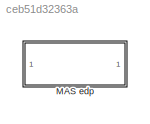
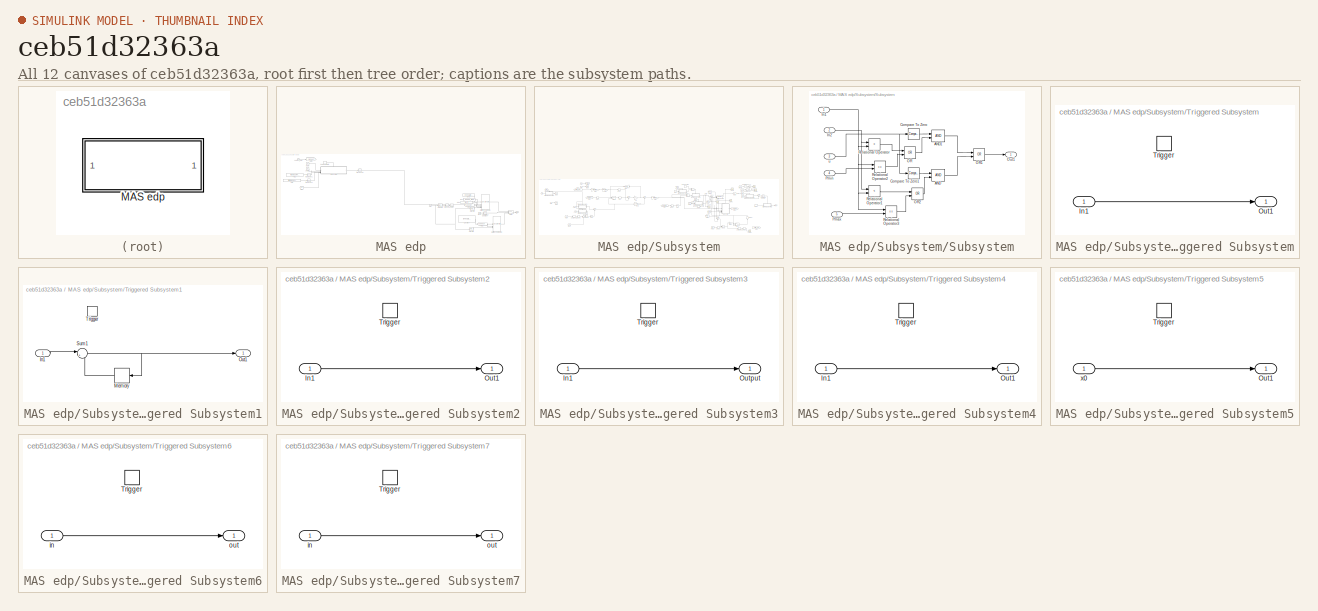
[diagram: thumbnail index - all 12 canvases of the model, root first then tree order]
MODEL slx_ceb51d32363a
KIND model
CONFIG AbsTol = auto
CONFIG EnableMultiTasking = off
CONFIG FixedStep = auto
CONFIG MaxStep = auto
CONFIG MinStep = auto
CONFIG RelTol = 1e-3
CONFIG SampleTimeConstraint = Unconstrained
CONFIG SolverName = VariableStepAuto
CONFIG StartTime = 0.0
CONFIG StopTime = 10.0
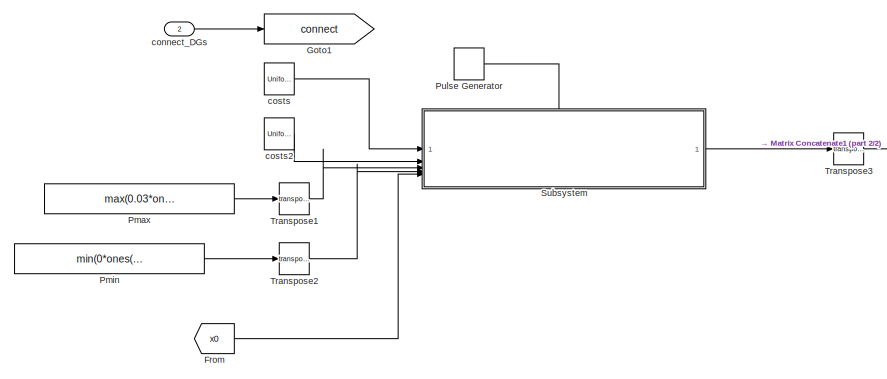
[diagram: MAS edp - part 1/2, top left region]
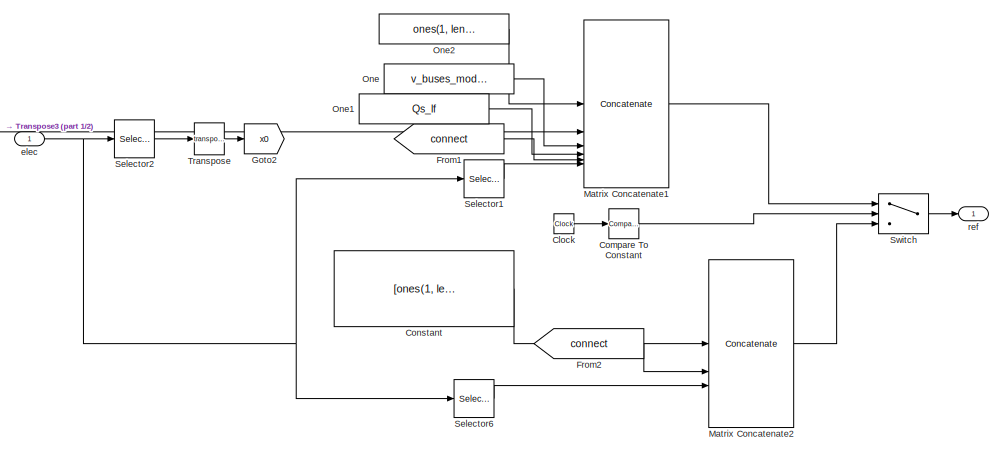
[diagram: MAS edp - part 2/2, bottom right region]
BLOCK [SubSystem] MAS edp
  NameLocation = top
  VariantControl = MAS edp
BLOCK [Clock] MAS edp/Clock
BLOCK [Reference] MAS edp/Compare To Constant  REF=simulink/Logic and Bit
Operations/Compare
To Constant
  SourceBlock = simulink/Logic and Bit\nOperations/Compare\nTo Constant
  SourceType = Compare To Constant
BLOCK [Constant] MAS edp/Constant
  Value = [ones(1, length(buses_lf)); Ps_lf; v_buses_mod(buses_lf); Qs_lf]
  VectorParams1D = off
BLOCK [From] MAS edp/From
  GotoTag = x0
BLOCK [From] MAS edp/From1
  GotoTag = connect
BLOCK [From] MAS edp/From2
  GotoTag = connect
BLOCK [Goto] MAS edp/Goto1
  GotoTag = connect
BLOCK [Goto] MAS edp/Goto2
  GotoTag = x0
BLOCK [Concatenate] MAS edp/Matrix Concatenate1
  Mode = Multidimensional array
  NumInputs = 6
BLOCK [Concatenate] MAS edp/Matrix Concatenate2
  Mode = Multidimensional array
  NumInputs = 3
BLOCK [Constant] MAS edp/One
  OutDataTypeStr = Inherit: Inherit via back propagation
  Value = v_buses_mod(buses_lf)
  VectorParams1D = off
BLOCK [Constant] MAS edp/One1
  OutDataTypeStr = Inherit: Inherit via back propagation
  Value = Qs_lf
  VectorParams1D = off
BLOCK [Constant] MAS edp/One2
  OutDataTypeStr = Inherit: Inherit via back propagation
  Value = ones(1, length(buses_lf))
  VectorParams1D = off
BLOCK [Constant] MAS edp/Pmax
  Value = max(0.03*ones(1, length(Ps_lf)), Ps_lf)
  VectorParams1D = off
BLOCK [Constant] MAS edp/Pmin
  Value = min(0*ones(1, length(Ps_lf)), Ps_lf*0.5)
  VectorParams1D = off
BLOCK [DiscretePulseGenerator] MAS edp/Pulse Generator
  Period = 100
  PhaseDelay = 2
  PulseType = Time based
  PulseWidth = 5
BLOCK [Selector] MAS edp/Selector1
  IndexOptions = Index vector (dialog),Select all
  Indices = 6,1
  InputPortWidth = 3
  NumberOfDimensions = 2
  OutputSizes = 1,1
BLOCK [Selector] MAS edp/Selector2
  IndexOptions = Index vector (dialog),Select all
  Indices = 2,1
  InputPortWidth = 3
  NumberOfDimensions = 2
  OutputSizes = 1,1
BLOCK [Selector] MAS edp/Selector6
  IndexOptions = Index vector (dialog),Select all
  Indices = 6,1
  InputPortWidth = 3
  NumberOfDimensions = 2
  OutputSizes = 1,1
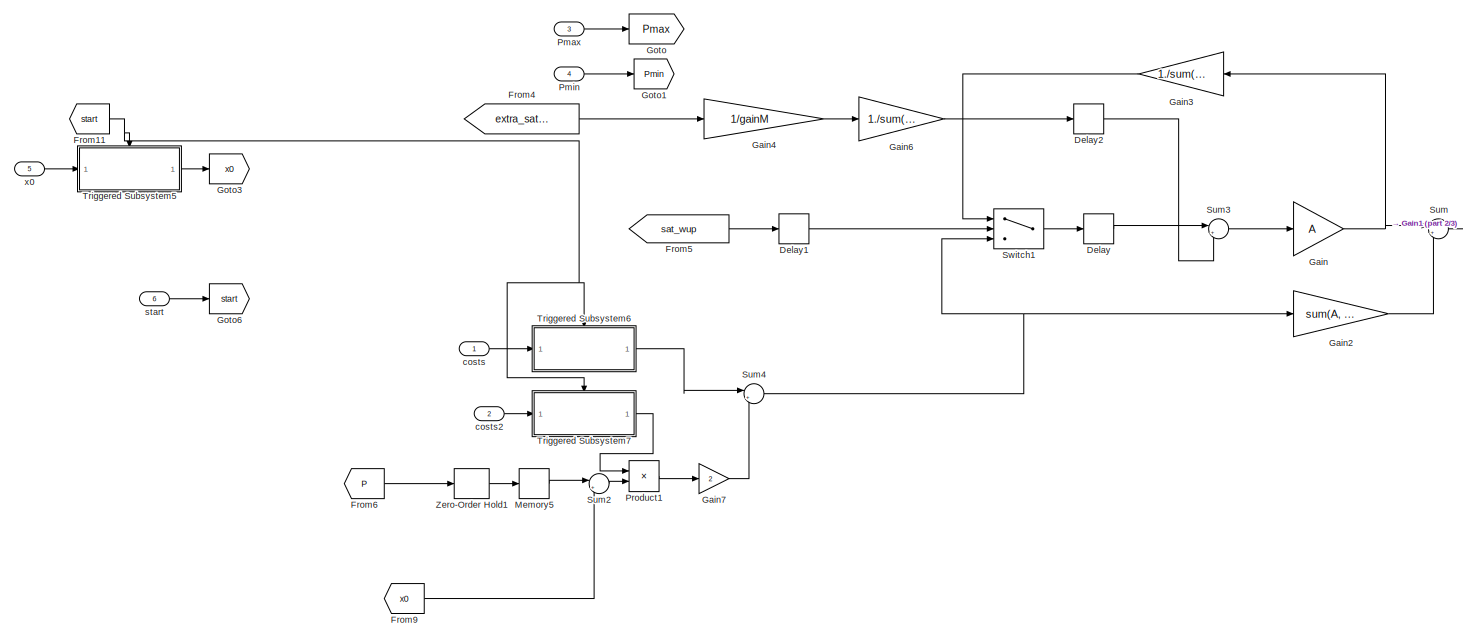
[diagram: MAS edp/Subsystem - part 1/3, left side, full height]
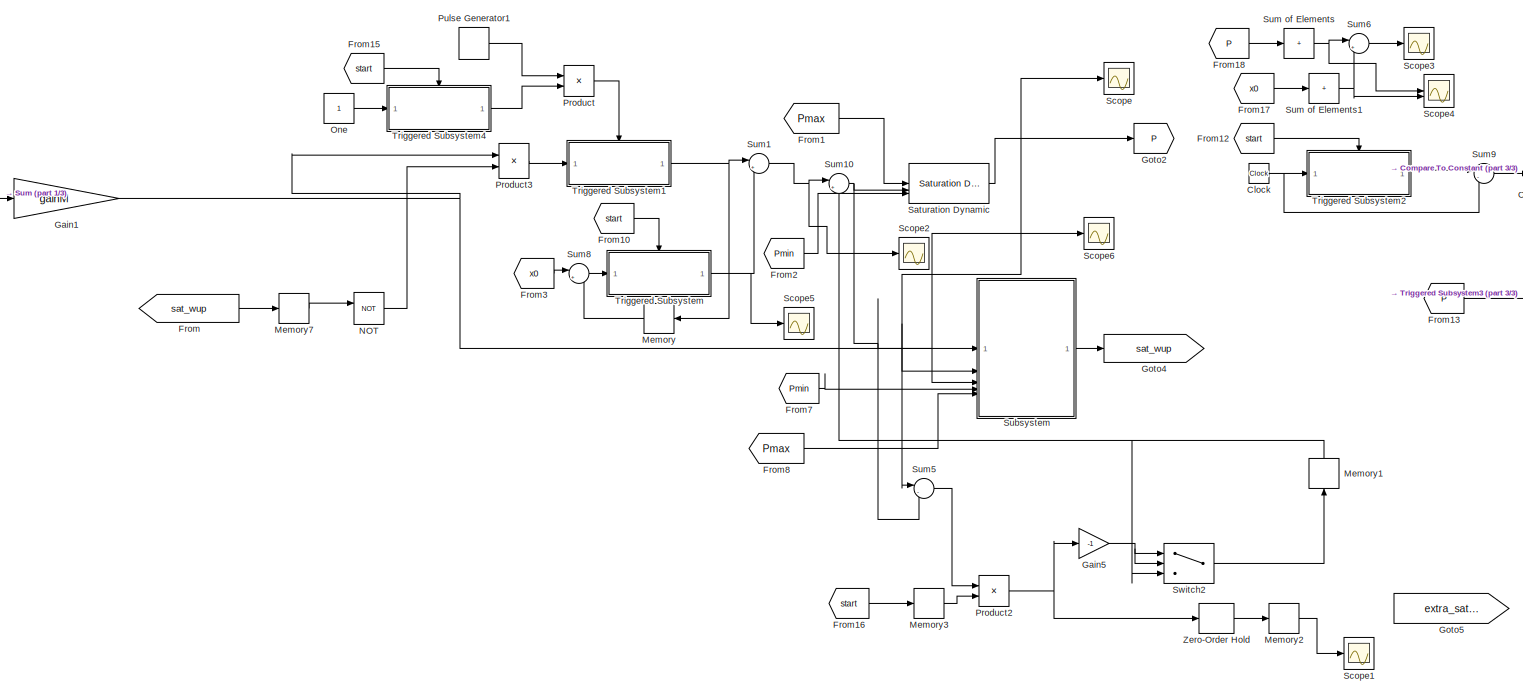
[diagram: MAS edp/Subsystem - part 2/3, right side, full height]
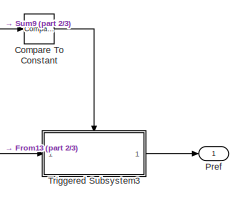
[diagram: MAS edp/Subsystem - part 3/3, middle right region]
BLOCK [SubSystem] MAS edp/Subsystem
  PortSchema = {"entries":[{"content":{"sides":[{"content":{"connectorIds":["In1","In2","In3","In4","In5"]},"type":"ConnectorPlacement.EquallySpacedRectSide","uuid":"cdca2cdc-0a32-4006-9eb7-95eef3e074c5"},{"content":{"connectorIds":["Out1"],"side":"RIGHT"},"type":"ConnectorPlacement.EquallySpacedRectSide","uuid":"477e4c44-ed13-4581-bb25-eee9ea5698cb"},{"content":{"connectorIds":["In6"],"side":"TOP"},"type":"Conn...<+269ch>
BLOCK [Clock] MAS edp/Subsystem/Clock
BLOCK [Reference] MAS edp/Subsystem/Compare To Constant  REF=simulink/Logic and Bit
Operations/Compare
To Constant
  SourceBlock = simulink/Logic and Bit\nOperations/Compare\nTo Constant
  SourceType = Compare To Constant
BLOCK [Memory] MAS edp/Subsystem/Delay
BLOCK [Memory] MAS edp/Subsystem/Delay1
BLOCK [Memory] MAS edp/Subsystem/Delay2
BLOCK [From] MAS edp/Subsystem/From
  GotoTag = sat_wup
BLOCK [From] MAS edp/Subsystem/From1
  GotoTag = Pmax
BLOCK [From] MAS edp/Subsystem/From10
  GotoTag = start
BLOCK [From] MAS edp/Subsystem/From11
  GotoTag = start
BLOCK [From] MAS edp/Subsystem/From12
  GotoTag = start
BLOCK [From] MAS edp/Subsystem/From13
  GotoTag = P
BLOCK [From] MAS edp/Subsystem/From15
  GotoTag = start
BLOCK [From] MAS edp/Subsystem/From16
  GotoTag = start
BLOCK [From] MAS edp/Subsystem/From17
  GotoTag = x0
BLOCK [From] MAS edp/Subsystem/From18
  GotoTag = P
BLOCK [From] MAS edp/Subsystem/From2
  GotoTag = Pmin
BLOCK [From] MAS edp/Subsystem/From3
  GotoTag = x0
BLOCK [From] MAS edp/Subsystem/From4
  GotoTag = extra_satur
BLOCK [From] MAS edp/Subsystem/From5
  GotoTag = sat_wup
BLOCK [From] MAS edp/Subsystem/From6
  GotoTag = P
BLOCK [From] MAS edp/Subsystem/From7
  GotoTag = Pmin
BLOCK [From] MAS edp/Subsystem/From8
  GotoTag = Pmax
BLOCK [From] MAS edp/Subsystem/From9
  GotoTag = x0
BLOCK [Gain] MAS edp/Subsystem/Gain
  Gain = A
  Multiplication = Matrix(K*u)
BLOCK [Gain] MAS edp/Subsystem/Gain1
  Gain = gainM
BLOCK [Gain] MAS edp/Subsystem/Gain2
  Gain = sum(A, 2)
BLOCK [Gain] MAS edp/Subsystem/Gain3
  Gain = 1./sum(A, 2)
BLOCK [Gain] MAS edp/Subsystem/Gain4
  Gain = 1/gainM
BLOCK [Gain] MAS edp/Subsystem/Gain5
  Gain = -1
BLOCK [Gain] MAS edp/Subsystem/Gain6
  Gain = 1./sum(A, 2)
BLOCK [Gain] MAS edp/Subsystem/Gain7
  Gain = 2
BLOCK [Goto] MAS edp/Subsystem/Goto
  GotoTag = Pmax
BLOCK [Goto] MAS edp/Subsystem/Goto1
  GotoTag = Pmin
BLOCK [Goto] MAS edp/Subsystem/Goto2
  GotoTag = P
BLOCK [Goto] MAS edp/Subsystem/Goto3
  GotoTag = x0
BLOCK [Goto] MAS edp/Subsystem/Goto4
  GotoTag = sat_wup
BLOCK [Goto] MAS edp/Subsystem/Goto5
  GotoTag = extra_satur
BLOCK [Goto] MAS edp/Subsystem/Goto6
  GotoTag = start
BLOCK [Memory] MAS edp/Subsystem/Memory
BLOCK [Memory] MAS edp/Subsystem/Memory1
  NameLocation = right
BLOCK [Memory] MAS edp/Subsystem/Memory2
BLOCK [Memory] MAS edp/Subsystem/Memory3
BLOCK [Memory] MAS edp/Subsystem/Memory5
BLOCK [Memory] MAS edp/Subsystem/Memory7
BLOCK [Logic] MAS edp/Subsystem/NOT
  AllPortsSameDT = off
  IconShape = distinctive
  Operator = NOT
  OutDataTypeStr = boolean
BLOCK [Constant] MAS edp/Subsystem/One
  OutDataTypeStr = Inherit: Inherit via back propagation
BLOCK [Inport] MAS edp/Subsystem/Pmax
  Port = 3
BLOCK [Inport] MAS edp/Subsystem/Pmin
  Port = 4
BLOCK [Outport] MAS edp/Subsystem/Pref
BLOCK [Product] MAS edp/Subsystem/Product
BLOCK [Product] MAS edp/Subsystem/Product1
BLOCK [Product] MAS edp/Subsystem/Product2
BLOCK [Product] MAS edp/Subsystem/Product3
BLOCK [DiscretePulseGenerator] MAS edp/Subsystem/Pulse Generator1
  Period = 0.1
  PulseType = Time based
  PulseWidth = 50
BLOCK [Reference] MAS edp/Subsystem/Saturation Dynamic  REF=simulink/Discontinuities/Saturation
Dynamic
  SourceBlock = simulink/Discontinuities/Saturation\nDynamic
  SourceType = Saturation Dynamic
BLOCK [Scope] MAS edp/Subsystem/Scope
  ActiveDisplayYMaximum = 0.03375
  ActiveDisplayYMinimum = -0.00375
  DataLoggingVariableName = ScopeData1
  Floating = off
  GraphicalSettings = {"GraphicalSettings":{"LegacySettings":true,"Style":{"AxesScalingProperties":{"AlignXAxis":"Center","AlignYAxis":"Center","AutoScaleXAxisLimits":true,"AxesScaling":"Manual","AxesScalingNumUpdates":10,"ScaleAxesLimitsAtStop":true,"XAxisDataRange":100,"YAxisDataRange":80},"Style":{"AxesColor":"[0 0 0]","ChannelNames":[""],"ColorOrder":"[1 0.909803921568627 0.392156862745098;0.149019607843137 0.54901...<+675ch>  <repeated x7 — deduplicated; at blocks: Scope, Scope1, Scope2, Scope3, Scope4, Scope5, Scope6>
  LayoutDimensionsString = [1 1]
  MultipleDisplayCache = [{"MaxYLimMag":0.03375,"MaxYLimReal":0.03375,"MinYLimMag":0,"MinYLimReal":-0.00375,"PlotAsMagnitudePhase":false,"ShowGrid":true,"ShowLegend":true,"Title":"%<SignalLabel>","YLabel":""}]
  NumInputPorts = 1
  ShowLegend = on
  WasSavedAsWebScope = on
  WindowPosition = [164 199 560 420]
BLOCK [Scope] MAS edp/Subsystem/Scope1
  ActiveDisplayYMaximum = 0.00113
  ActiveDisplayYMinimum = -0.00119
  DataLoggingVariableName = ScopeData1
  Floating = off
  LayoutDimensionsString = [1 1]
  MultipleDisplayCache = [{"MaxYLimMag":0.00119,"MaxYLimReal":0.00113,"MinYLimMag":0,"MinYLimReal":-0.00119,"PlotAsMagnitudePhase":false,"ShowGrid":true,"ShowLegend":false,"Title":"%<SignalLabel>","YLabel":""}]
  NumInputPorts = 1
  WasSavedAsWebScope = on
  WindowPosition = [342 343 560 420]
BLOCK [Scope] MAS edp/Subsystem/Scope2
  ActiveDisplayYMaximum = 0.03442
  ActiveDisplayYMinimum = -0.00492
  DataLoggingVariableName = ScopeData2
  Floating = off
  LayoutDimensionsString = [1 1]
  MultipleDisplayCache = [{"MaxYLimMag":0.03442,"MaxYLimReal":0.03442,"MinYLimMag":0,"MinYLimReal":-0.00492,"PlotAsMagnitudePhase":false,"ShowGrid":true,"ShowLegend":false,"Title":"%<SignalLabel>","YLabel":""}]
  NumInputPorts = 1
  WasSavedAsWebScope = on
  WindowPosition = [1081 281 560 420]
BLOCK [Scope] MAS edp/Subsystem/Scope3
  ActiveDisplayYMaximum = 0.16617
  ActiveDisplayYMinimum = -0.01846
  DataLoggingVariableName = ScopeData3
  Floating = off
  LayoutDimensionsString = [1 1]
  MultipleDisplayCache = [{"MaxYLimMag":0.16617,"MaxYLimReal":0.16617,"MinYLimMag":0,"MinYLimReal":-0.01846,"PlotAsMagnitudePhase":false,"ShowGrid":true,"ShowLegend":false,"Title":"%<SignalLabel>","YLabel":""}]
  NumInputPorts = 1
  WasSavedAsWebScope = on
  WindowPosition = [1199 402 560 420]
BLOCK [Scope] MAS edp/Subsystem/Scope4
  ActiveDisplayYMaximum = 1
  ActiveDisplayYMinimum = -1
  DataLoggingVariableName = ScopeData4
  Floating = off
  LayoutDimensionsString = [1 1]
  MultipleDisplayCache = [{"MaxYLimMag":1,"MaxYLimReal":1,"MinYLimMag":0,"MinYLimReal":-1,"PlotAsMagnitudePhase":false,"ShowGrid":true,"ShowLegend":false,"Title":"%<SignalLabel>","YLabel":""}]
  NumInputPorts = 2
  WasSavedAsWebScope = on
BLOCK [Scope] MAS edp/Subsystem/Scope5
  ActiveDisplayYMaximum = 0.06371
  ActiveDisplayYMinimum = -0.01822
  DataLoggingVariableName = ScopeData1
  Floating = off
  LayoutDimensionsString = [1 1]
  MultipleDisplayCache = [{"MaxYLimMag":0.06371,"MaxYLimReal":0.06371,"MinYLimMag":0,"MinYLimReal":-0.01822,"PlotAsMagnitudePhase":false,"ShowGrid":true,"ShowLegend":false,"Title":"%<SignalLabel>","YLabel":""}]
  NumInputPorts = 1
  WasSavedAsWebScope = on
  WindowPosition = [207 271 560 420]
BLOCK [Scope] MAS edp/Subsystem/Scope6
  ActiveDisplayYMaximum = 0.00091
  ActiveDisplayYMinimum = -0.00114
  DataLoggingVariableName = ScopeData2
  Floating = off
  LayoutDimensionsString = [1 1]
  MultipleDisplayCache = [{"MaxYLimMag":0.00114,"MaxYLimReal":0.00091,"MinYLimMag":0,"MinYLimReal":-0.00114,"PlotAsMagnitudePhase":false,"ShowGrid":true,"ShowLegend":true,"Title":"%<SignalLabel>","YLabel":""}]
  NumInputPorts = 1
  ShowLegend = on
  WasSavedAsWebScope = on
  WindowPosition = [1233 308 560 420]
BLOCK [SubSystem] MAS edp/Subsystem/Subsystem
BLOCK [Logic] MAS edp/Subsystem/Subsystem/AND
  AllPortsSameDT = off
  IconShape = distinctive
  OutDataTypeStr = boolean
BLOCK [Logic] MAS edp/Subsystem/Subsystem/AND1
  AllPortsSameDT = off
  IconShape = distinctive
  OutDataTypeStr = boolean
BLOCK [Reference] MAS edp/Subsystem/Subsystem/Compare To Zero  REF=simulink/Logic and Bit
Operations/Compare
To Zero
  SourceBlock = simulink/Logic and Bit\nOperations/Compare\nTo Zero
  SourceType = Compare To Zero
BLOCK [Reference] MAS edp/Subsystem/Subsystem/Compare To Zero1  REF=simulink/Logic and Bit
Operations/Compare
To Zero
  SourceBlock = simulink/Logic and Bit\nOperations/Compare\nTo Zero
  SourceType = Compare To Zero
BLOCK [Inport] MAS edp/Subsystem/Subsystem/In1
BLOCK [Inport] MAS edp/Subsystem/Subsystem/In2
  Port = 2
BLOCK [Logic] MAS edp/Subsystem/Subsystem/OR
  AllPortsSameDT = off
  IconShape = distinctive
  Operator = OR
  OutDataTypeStr = boolean
BLOCK [Logic] MAS edp/Subsystem/Subsystem/OR1
  AllPortsSameDT = off
  IconShape = distinctive
  Operator = OR
  OutDataTypeStr = boolean
BLOCK [Logic] MAS edp/Subsystem/Subsystem/OR2
  AllPortsSameDT = off
  IconShape = distinctive
  Operator = OR
  OutDataTypeStr = boolean
BLOCK [Outport] MAS edp/Subsystem/Subsystem/Out1
BLOCK [Inport] MAS edp/Subsystem/Subsystem/Pmax
  Port = 5
BLOCK [Inport] MAS edp/Subsystem/Subsystem/Pmin
  Port = 4
BLOCK [RelationalOperator] MAS edp/Subsystem/Subsystem/Relational Operator
  InputSameDT = off
  Operator = >
  OutDataTypeStr = boolean
  RndMeth = Simplest
BLOCK [RelationalOperator] MAS edp/Subsystem/Subsystem/Relational Operator1
  InputSameDT = off
  Operator = <
  OutDataTypeStr = boolean
  RndMeth = Simplest
BLOCK [RelationalOperator] MAS edp/Subsystem/Subsystem/Relational Operator2
  InputSameDT = off
  Operator = ==
  OutDataTypeStr = boolean
  RndMeth = Simplest
BLOCK [RelationalOperator] MAS edp/Subsystem/Subsystem/Relational Operator3
  InputSameDT = off
  Operator = ==
  OutDataTypeStr = boolean
  RndMeth = Simplest
BLOCK [Inport] MAS edp/Subsystem/Subsystem/u
  Port = 3
BLOCK [Sum] MAS edp/Subsystem/Sum
  Inputs = |+-
BLOCK [Sum] MAS edp/Subsystem/Sum of Elements
  IconShape = rectangular
  Inputs = +
BLOCK [Sum] MAS edp/Subsystem/Sum of Elements1
  IconShape = rectangular
  Inputs = +
BLOCK [Sum] MAS edp/Subsystem/Sum1
  Inputs = |++
BLOCK [Sum] MAS edp/Subsystem/Sum10
  Inputs = |++
BLOCK [Sum] MAS edp/Subsystem/Sum2
  Inputs = |++
BLOCK [Sum] MAS edp/Subsystem/Sum3
  Inputs = |++
BLOCK [Sum] MAS edp/Subsystem/Sum4
  Inputs = |++
BLOCK [Sum] MAS edp/Subsystem/Sum5
  Inputs = |-+
BLOCK [Sum] MAS edp/Subsystem/Sum6
  Inputs = |++
BLOCK [Sum] MAS edp/Subsystem/Sum8
  Inputs = |+-
BLOCK [Sum] MAS edp/Subsystem/Sum9
  Inputs = |-+
BLOCK [Switch] MAS edp/Subsystem/Switch1
  Criteria = u2 > Threshold
  InputSameDT = off
  SaturateOnIntegerOverflow = off
BLOCK [Switch] MAS edp/Subsystem/Switch2
  Criteria = u2 ~= 0
  InputSameDT = off
  SaturateOnIntegerOverflow = off
BLOCK [SubSystem] MAS edp/Subsystem/Triggered Subsystem
  TreatAsAtomicUnit = on
BLOCK [Inport] MAS edp/Subsystem/Triggered Subsystem/In1
BLOCK [Outport] MAS edp/Subsystem/Triggered Subsystem/Out1
BLOCK [TriggerPort] MAS edp/Subsystem/Triggered Subsystem/Trigger
  StatesWhenEnabling = held
  VariantControl = (inherit)
BLOCK [SubSystem] MAS edp/Subsystem/Triggered Subsystem1
  TreatAsAtomicUnit = on
BLOCK [Inport] MAS edp/Subsystem/Triggered Subsystem1/In1
BLOCK [Memory] MAS edp/Subsystem/Triggered Subsystem1/Memory
  InheritSampleTime = on
  NameLocation = top
BLOCK [Outport] MAS edp/Subsystem/Triggered Subsystem1/Out1
BLOCK [Sum] MAS edp/Subsystem/Triggered Subsystem1/Sum1
  Inputs = |++
BLOCK [TriggerPort] MAS edp/Subsystem/Triggered Subsystem1/Trigger
  StatesWhenEnabling = held
  VariantControl = (inherit)
BLOCK [SubSystem] MAS edp/Subsystem/Triggered Subsystem2
  TreatAsAtomicUnit = on
BLOCK [Inport] MAS edp/Subsystem/Triggered Subsystem2/In1
BLOCK [Outport] MAS edp/Subsystem/Triggered Subsystem2/Out1
BLOCK [TriggerPort] MAS edp/Subsystem/Triggered Subsystem2/Trigger
  StatesWhenEnabling = held
  VariantControl = (inherit)
BLOCK [SubSystem] MAS edp/Subsystem/Triggered Subsystem3
  TreatAsAtomicUnit = on
BLOCK [Inport] MAS edp/Subsystem/Triggered Subsystem3/In1
BLOCK [Outport] MAS edp/Subsystem/Triggered Subsystem3/Output
BLOCK [TriggerPort] MAS edp/Subsystem/Triggered Subsystem3/Trigger
  StatesWhenEnabling = held
  VariantControl = (inherit)
BLOCK [SubSystem] MAS edp/Subsystem/Triggered Subsystem4
  TreatAsAtomicUnit = on
BLOCK [Inport] MAS edp/Subsystem/Triggered Subsystem4/In1
BLOCK [Outport] MAS edp/Subsystem/Triggered Subsystem4/Out1
BLOCK [TriggerPort] MAS edp/Subsystem/Triggered Subsystem4/Trigger
  StatesWhenEnabling = held
  VariantControl = (inherit)
BLOCK [SubSystem] MAS edp/Subsystem/Triggered Subsystem5
  TreatAsAtomicUnit = on
BLOCK [Outport] MAS edp/Subsystem/Triggered Subsystem5/Out1
BLOCK [TriggerPort] MAS edp/Subsystem/Triggered Subsystem5/Trigger
  StatesWhenEnabling = held
  VariantControl = (inherit)
BLOCK [Inport] MAS edp/Subsystem/Triggered Subsystem5/x0
BLOCK [SubSystem] MAS edp/Subsystem/Triggered Subsystem6
  TreatAsAtomicUnit = on
BLOCK [TriggerPort] MAS edp/Subsystem/Triggered Subsystem6/Trigger
  StatesWhenEnabling = held
  VariantControl = (inherit)
BLOCK [Inport] MAS edp/Subsystem/Triggered Subsystem6/in
BLOCK [Outport] MAS edp/Subsystem/Triggered Subsystem6/out
BLOCK [SubSystem] MAS edp/Subsystem/Triggered Subsystem7
  TreatAsAtomicUnit = on
BLOCK [TriggerPort] MAS edp/Subsystem/Triggered Subsystem7/Trigger
  StatesWhenEnabling = held
  VariantControl = (inherit)
BLOCK [Inport] MAS edp/Subsystem/Triggered Subsystem7/in
BLOCK [Outport] MAS edp/Subsystem/Triggered Subsystem7/out
BLOCK [ZeroOrderHold] MAS edp/Subsystem/Zero-Order Hold
  SampleTime = 0.1
BLOCK [ZeroOrderHold] MAS edp/Subsystem/Zero-Order Hold1
  SampleTime = 0.1
BLOCK [Inport] MAS edp/Subsystem/costs
BLOCK [Inport] MAS edp/Subsystem/costs2
  Port = 2
BLOCK [Inport] MAS edp/Subsystem/start
  Port = 6
BLOCK [Inport] MAS edp/Subsystem/x0
  Port = 5
BLOCK [Switch] MAS edp/Switch
  Criteria = u2 > Threshold
  InputSameDT = off
  SaturateOnIntegerOverflow = off
BLOCK [Math] MAS edp/Transpose
  Operator = transpose
BLOCK [Math] MAS edp/Transpose1
  Operator = transpose
BLOCK [Math] MAS edp/Transpose2
  Operator = transpose
BLOCK [Math] MAS edp/Transpose3
  Operator = transpose
BLOCK [Inport] MAS edp/connect_DGs
  Port = 2
BLOCK [UniformRandomNumber] MAS edp/costs
  Minimum = 0
  SampleTime = 100
  Seed = (1:length(buses_lf))'
  VectorParams1D = off
BLOCK [UniformRandomNumber] MAS edp/costs2
  Minimum = 0
  SampleTime = 100
  Seed = 9*(1:length(buses_lf))'
  VectorParams1D = off
BLOCK [Inport] MAS edp/elec
BLOCK [Outport] MAS edp/ref
LINE MAS edp/Clock:1 -> MAS edp/Compare To Constant:1
LINE MAS edp/Compare To Constant:1 -> MAS edp/Switch:2
LINE MAS edp/Constant:1 -> MAS edp/Matrix Concatenate2:1
LINE MAS edp/From1:1 -> MAS edp/Matrix Concatenate1:5
LINE MAS edp/From2:1 -> MAS edp/Matrix Concatenate2:2
LINE MAS edp/From:1 -> MAS edp/Subsystem:5
LINE MAS edp/Matrix Concatenate1:1 -> MAS edp/Switch:1
LINE MAS edp/Matrix Concatenate2:1 -> MAS edp/Switch:3
LINE MAS edp/One1:1 -> MAS edp/Matrix Concatenate1:4
LINE MAS edp/One2:1 -> MAS edp/Matrix Concatenate1:1
LINE MAS edp/One:1 -> MAS edp/Matrix Concatenate1:3
LINE MAS edp/Pmax:1 -> MAS edp/Transpose1:1
LINE MAS edp/Pmin:1 -> MAS edp/Transpose2:1
LINE MAS edp/Pulse Generator:1 -> MAS edp/Subsystem:6
LINE MAS edp/Selector1:1 -> MAS edp/Matrix Concatenate1:6
LINE MAS edp/Selector2:1 -> MAS edp/Transpose:1
LINE MAS edp/Selector6:1 -> MAS edp/Matrix Concatenate2:3
NET MAS edp/Subsystem/Clock:1 -> MAS edp/Subsystem/Sum9:2, MAS edp/Subsystem/Triggered Subsystem2:1
LINE MAS edp/Subsystem/Compare To Constant:1 -> MAS edp/Subsystem/Triggered Subsystem3:trigger
LINE MAS edp/Subsystem/Delay1:1 -> MAS edp/Subsystem/Switch1:2
LINE MAS edp/Subsystem/Delay2:1 -> MAS edp/Subsystem/Sum3:2
LINE MAS edp/Subsystem/Delay:1 -> MAS edp/Subsystem/Sum3:1
LINE MAS edp/Subsystem/From10:1 -> MAS edp/Subsystem/Triggered Subsystem:trigger
NET MAS edp/Subsystem/From11:1 -> MAS edp/Subsystem/Triggered Subsystem5:trigger, MAS edp/Subsystem/Triggered Subsystem6:trigger, MAS edp/Subsystem/Triggered Subsystem7:trigger
LINE MAS edp/Subsystem/From12:1 -> MAS edp/Subsystem/Triggered Subsystem2:trigger
LINE MAS edp/Subsystem/From13:1 -> MAS edp/Subsystem/Triggered Subsystem3:1
LINE MAS edp/Subsystem/From15:1 -> MAS edp/Subsystem/Triggered Subsystem4:trigger
LINE MAS edp/Subsystem/From16:1 -> MAS edp/Subsystem/Memory3:1
LINE MAS edp/Subsystem/From17:1 -> MAS edp/Subsystem/Sum of Elements1:1
LINE MAS edp/Subsystem/From18:1 -> MAS edp/Subsystem/Sum of Elements:1
LINE MAS edp/Subsystem/From1:1 -> MAS edp/Subsystem/Saturation Dynamic:1
LINE MAS edp/Subsystem/From2:1 -> MAS edp/Subsystem/Saturation Dynamic:3
LINE MAS edp/Subsystem/From3:1 -> MAS edp/Subsystem/Sum8:1
LINE MAS edp/Subsystem/From4:1 -> MAS edp/Subsystem/Gain4:1
LINE MAS edp/Subsystem/From5:1 -> MAS edp/Subsystem/Delay1:1
LINE MAS edp/Subsystem/From6:1 -> MAS edp/Subsystem/Zero-Order Hold1:1
LINE MAS edp/Subsystem/From7:1 -> MAS edp/Subsystem/Subsystem:4
LINE MAS edp/Subsystem/From8:1 -> MAS edp/Subsystem/Subsystem:5
LINE MAS edp/Subsystem/From9:1 -> MAS edp/Subsystem/Sum2:2
LINE MAS edp/Subsystem/From:1 -> MAS edp/Subsystem/Memory7:1
NET MAS edp/Subsystem/Gain1:1 -> MAS edp/Subsystem/Product3:1, MAS edp/Subsystem/Scope6:1, MAS edp/Subsystem/Subsystem:3
LINE MAS edp/Subsystem/Gain2:1 -> MAS edp/Subsystem/Sum:2
LINE MAS edp/Subsystem/Gain3:1 -> MAS edp/Subsystem/Switch1:1
LINE MAS edp/Subsystem/Gain4:1 -> MAS edp/Subsystem/Gain6:1
NET MAS edp/Subsystem/Gain5:1 -> MAS edp/Subsystem/Switch2:1, MAS edp/Subsystem/Switch2:2
LINE MAS edp/Subsystem/Gain6:1 -> MAS edp/Subsystem/Delay2:1
LINE MAS edp/Subsystem/Gain7:1 -> MAS edp/Subsystem/Sum4:2
NET MAS edp/Subsystem/Gain:1 -> MAS edp/Subsystem/Gain3:1, MAS edp/Subsystem/Sum:1
NET MAS edp/Subsystem/Memory1:1 -> MAS edp/Subsystem/Sum10:2, MAS edp/Subsystem/Switch2:3
LINE MAS edp/Subsystem/Memory2:1 -> MAS edp/Subsystem/Scope1:1
LINE MAS edp/Subsystem/Memory3:1 -> MAS edp/Subsystem/Product2:2
LINE MAS edp/Subsystem/Memory5:1 -> MAS edp/Subsystem/Sum2:1
LINE MAS edp/Subsystem/Memory7:1 -> MAS edp/Subsystem/NOT:1
LINE MAS edp/Subsystem/Memory:1 -> MAS edp/Subsystem/Sum8:2
LINE MAS edp/Subsystem/NOT:1 -> MAS edp/Subsystem/Product3:2
LINE MAS edp/Subsystem/One:1 -> MAS edp/Subsystem/Triggered Subsystem4:1
LINE MAS edp/Subsystem/Pmax:1 -> MAS edp/Subsystem/Goto:1
LINE MAS edp/Subsystem/Pmin:1 -> MAS edp/Subsystem/Goto1:1
LINE MAS edp/Subsystem/Product1:1 -> MAS edp/Subsystem/Gain7:1
NET MAS edp/Subsystem/Product2:1 -> MAS edp/Subsystem/Gain5:1, MAS edp/Subsystem/Zero-Order Hold:1
LINE MAS edp/Subsystem/Product3:1 -> MAS edp/Subsystem/Triggered Subsystem1:1
LINE MAS edp/Subsystem/Product:1 -> MAS edp/Subsystem/Triggered Subsystem1:trigger
LINE MAS edp/Subsystem/Pulse Generator1:1 -> MAS edp/Subsystem/Product:1
NET MAS edp/Subsystem/Saturation Dynamic:1 -> MAS edp/Subsystem/Goto2:1, MAS edp/Subsystem/Scope:1, MAS edp/Subsystem/Subsystem:2, MAS edp/Subsystem/Sum5:1
LINE MAS edp/Subsystem/Subsystem/AND1:1 -> MAS edp/Subsystem/Subsystem/OR1:1
LINE MAS edp/Subsystem/Subsystem/AND:1 -> MAS edp/Subsystem/Subsystem/OR1:2
LINE MAS edp/Subsystem/Subsystem/Compare To Zero1:1 -> MAS edp/Subsystem/Subsystem/AND:1
LINE MAS edp/Subsystem/Subsystem/Compare To Zero:1 -> MAS edp/Subsystem/Subsystem/AND1:1
NET MAS edp/Subsystem/Subsystem/In1:1 -> MAS edp/Subsystem/Subsystem/Relational Operator1:2, MAS edp/Subsystem/Subsystem/Relational Operator2:1, MAS edp/Subsystem/Subsystem/Relational Operator3:1, MAS edp/Subsystem/Subsystem/Relational Operator:2
NET MAS edp/Subsystem/Subsystem/In2:1 -> MAS edp/Subsystem/Subsystem/Relational Operator1:1, MAS edp/Subsystem/Subsystem/Relational Operator:1
LINE MAS edp/Subsystem/Subsystem/OR1:1 -> MAS edp/Subsystem/Subsystem/Out1:1
LINE MAS edp/Subsystem/Subsystem/OR2:1 -> MAS edp/Subsystem/Subsystem/AND:2
LINE MAS edp/Subsystem/Subsystem/OR:1 -> MAS edp/Subsystem/Subsystem/AND1:2
LINE MAS edp/Subsystem/Subsystem/Pmax:1 -> MAS edp/Subsystem/Subsystem/Relational Operator3:2
LINE MAS edp/Subsystem/Subsystem/Pmin:1 -> MAS edp/Subsystem/Subsystem/Relational Operator2:2
LINE MAS edp/Subsystem/Subsystem/Relational Operator1:1 -> MAS edp/Subsystem/Subsystem/OR2:1
LINE MAS edp/Subsystem/Subsystem/Relational Operator2:1 -> MAS edp/Subsystem/Subsystem/OR:2
LINE MAS edp/Subsystem/Subsystem/Relational Operator3:1 -> MAS edp/Subsystem/Subsystem/OR2:2
LINE MAS edp/Subsystem/Subsystem/Relational Operator:1 -> MAS edp/Subsystem/Subsystem/OR:1
NET MAS edp/Subsystem/Subsystem/u:1 -> MAS edp/Subsystem/Subsystem/Compare To Zero1:1, MAS edp/Subsystem/Subsystem/Compare To Zero:1
LINE MAS edp/Subsystem/Subsystem:1 -> MAS edp/Subsystem/Goto4:1
NET MAS edp/Subsystem/Sum of Elements1:1 -> MAS edp/Subsystem/Scope4:2, MAS edp/Subsystem/Sum6:2
NET MAS edp/Subsystem/Sum of Elements:1 -> MAS edp/Subsystem/Scope4:1, MAS edp/Subsystem/Sum6:1
NET MAS edp/Subsystem/Sum10:1 -> MAS edp/Subsystem/Saturation Dynamic:2, MAS edp/Subsystem/Subsystem:1, MAS edp/Subsystem/Sum5:2
NET MAS edp/Subsystem/Sum1:1 -> MAS edp/Subsystem/Scope2:1, MAS edp/Subsystem/Sum10:1
LINE MAS edp/Subsystem/Sum2:1 -> MAS edp/Subsystem/Product1:2
LINE MAS edp/Subsystem/Sum3:1 -> MAS edp/Subsystem/Gain:1
NET MAS edp/Subsystem/Sum4:1 -> MAS edp/Subsystem/Gain2:1, MAS edp/Subsystem/Switch1:3
LINE MAS edp/Subsystem/Sum5:1 -> MAS edp/Subsystem/Product2:1
LINE MAS edp/Subsystem/Sum6:1 -> MAS edp/Subsystem/Scope3:1
LINE MAS edp/Subsystem/Sum8:1 -> MAS edp/Subsystem/Triggered Subsystem:1
LINE MAS edp/Subsystem/Sum9:1 -> MAS edp/Subsystem/Compare To Constant:1
LINE MAS edp/Subsystem/Sum:1 -> MAS edp/Subsystem/Gain1:1
LINE MAS edp/Subsystem/Switch1:1 -> MAS edp/Subsystem/Delay:1
LINE MAS edp/Subsystem/Switch2:1 -> MAS edp/Subsystem/Memory1:1
LINE MAS edp/Subsystem/Triggered Subsystem/In1:1 -> MAS edp/Subsystem/Triggered Subsystem/Out1:1
LINE MAS edp/Subsystem/Triggered Subsystem1/In1:1 -> MAS edp/Subsystem/Triggered Subsystem1/Sum1:1
LINE MAS edp/Subsystem/Triggered Subsystem1/Memory:1 -> MAS edp/Subsystem/Triggered Subsystem1/Sum1:2
NET MAS edp/Subsystem/Triggered Subsystem1/Sum1:1 -> MAS edp/Subsystem/Triggered Subsystem1/Memory:1, MAS edp/Subsystem/Triggered Subsystem1/Out1:1
NET MAS edp/Subsystem/Triggered Subsystem1:1 -> MAS edp/Subsystem/Memory:1, MAS edp/Subsystem/Sum1:1
LINE MAS edp/Subsystem/Triggered Subsystem2/In1:1 -> MAS edp/Subsystem/Triggered Subsystem2/Out1:1
LINE MAS edp/Subsystem/Triggered Subsystem2:1 -> MAS edp/Subsystem/Sum9:1
LINE MAS edp/Subsystem/Triggered Subsystem3/In1:1 -> MAS edp/Subsystem/Triggered Subsystem3/Output:1
LINE MAS edp/Subsystem/Triggered Subsystem3:1 -> MAS edp/Subsystem/Pref:1
LINE MAS edp/Subsystem/Triggered Subsystem4/In1:1 -> MAS edp/Subsystem/Triggered Subsystem4/Out1:1
LINE MAS edp/Subsystem/Triggered Subsystem4:1 -> MAS edp/Subsystem/Product:2
LINE MAS edp/Subsystem/Triggered Subsystem5/x0:1 -> MAS edp/Subsystem/Triggered Subsystem5/Out1:1
LINE MAS edp/Subsystem/Triggered Subsystem5:1 -> MAS edp/Subsystem/Goto3:1
LINE MAS edp/Subsystem/Triggered Subsystem6/in:1 -> MAS edp/Subsystem/Triggered Subsystem6/out:1
LINE MAS edp/Subsystem/Triggered Subsystem6:1 -> MAS edp/Subsystem/Sum4:1
LINE MAS edp/Subsystem/Triggered Subsystem7/in:1 -> MAS edp/Subsystem/Triggered Subsystem7/out:1
LINE MAS edp/Subsystem/Triggered Subsystem7:1 -> MAS edp/Subsystem/Product1:1
NET MAS edp/Subsystem/Triggered Subsystem:1 -> MAS edp/Subsystem/Scope5:1, MAS edp/Subsystem/Sum1:2
LINE MAS edp/Subsystem/Zero-Order Hold1:1 -> MAS edp/Subsystem/Memory5:1
LINE MAS edp/Subsystem/Zero-Order Hold:1 -> MAS edp/Subsystem/Memory2:1
LINE MAS edp/Subsystem/costs2:1 -> MAS edp/Subsystem/Triggered Subsystem7:1
LINE MAS edp/Subsystem/costs:1 -> MAS edp/Subsystem/Triggered Subsystem6:1
LINE MAS edp/Subsystem/start:1 -> MAS edp/Subsystem/Goto6:1
LINE MAS edp/Subsystem/x0:1 -> MAS edp/Subsystem/Triggered Subsystem5:1
LINE MAS edp/Subsystem:1 -> MAS edp/Transpose3:1
LINE MAS edp/Switch:1 -> MAS edp/ref:1
LINE MAS edp/Transpose1:1 -> MAS edp/Subsystem:3
LINE MAS edp/Transpose2:1 -> MAS edp/Subsystem:4
LINE MAS edp/Transpose3:1 -> MAS edp/Matrix Concatenate1:2
LINE MAS edp/Transpose:1 -> MAS edp/Goto2:1
LINE MAS edp/connect_DGs:1 -> MAS edp/Goto1:1
LINE MAS edp/costs2:1 -> MAS edp/Subsystem:2
LINE MAS edp/costs:1 -> MAS edp/Subsystem:1
NET MAS edp/elec:1 -> MAS edp/Selector1:1, MAS edp/Selector2:1, MAS edp/Selector6:1
note: NET lines group one-source signal fan-out (src -> all destinations, sorted); 1:1 wires keep LINE
